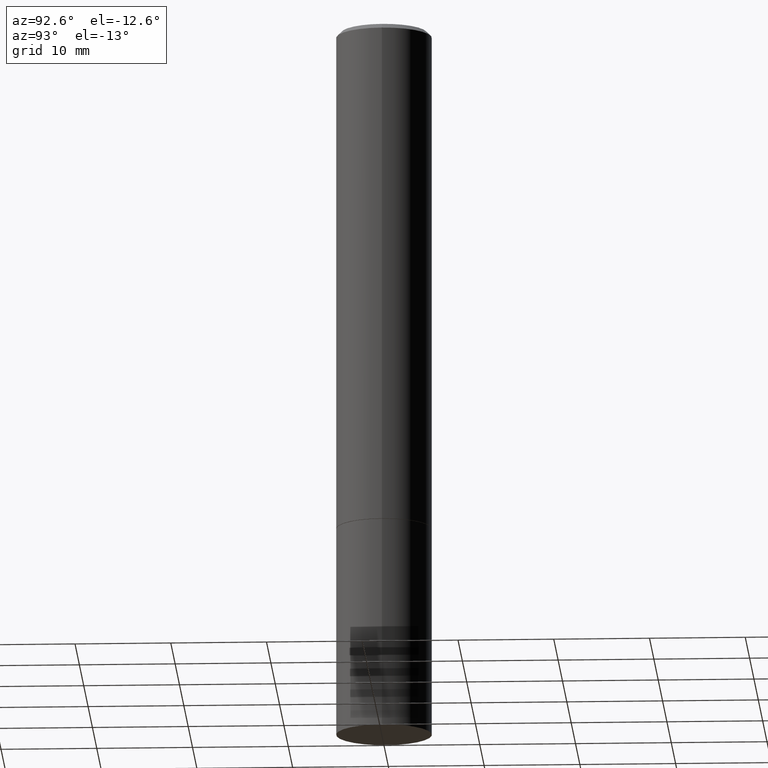
[diagram: clean part render]
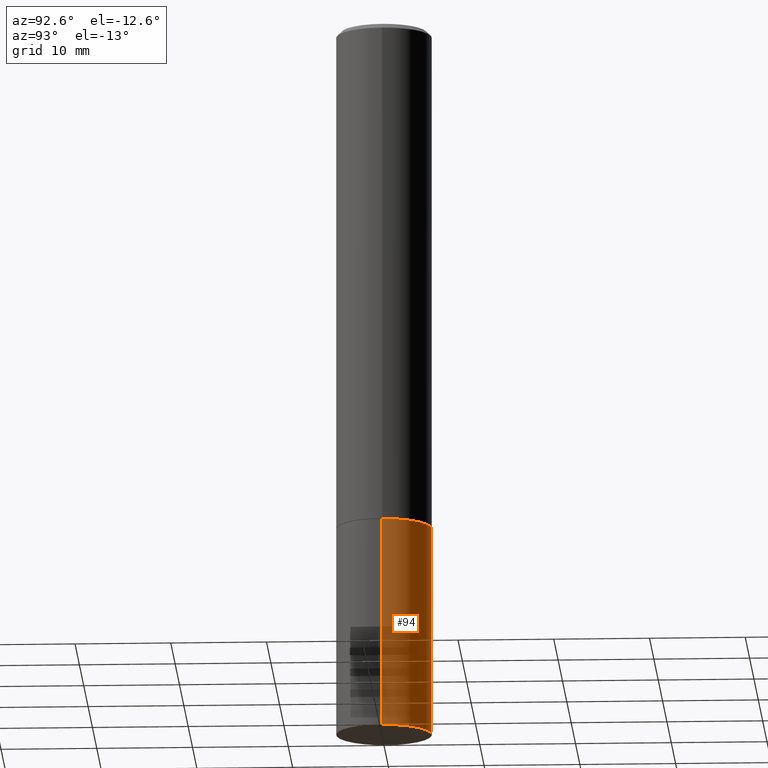
[diagram: same view with one face highlighted and labeled with its STEP entity id]
A machine part, auxiliary view. The second image highlights one B-rep face of the part: STEP entity #94.
In plain terms, the highlighted cylindrical surface (partial cylindrical patch) has radius 5 mm, axis along (-0, 0, 1).
Its self-contained STEP definition (entity closure, byte-faithful):
#15 = CARTESIAN_POINT ( 'NONE',  ( 5.102959757866523939E-29, -7.285674109763990928E-15, -2.086699999999999999 ) ) ;
#35 = VECTOR ( 'NONE', #89, 39.37007874015748143 ) ;
#58 = VECTOR ( 'NONE', #160, 39.37007874015748143 ) ;
#71 = EDGE_CURVE ( 'NONE', #95, #91, #301, .T. ) ;
#85 = LINE ( 'NONE', #203, #35 ) ;
#87 = CARTESIAN_POINT ( 'NONE',  ( 0.1968500000000000250, -1.168424230043858014E-14, -2.952799999999999869 ) ) ;
#89 = DIRECTION ( 'NONE',  ( -2.445468806185136877E-29, 3.491481338843145188E-15, 1.000000000000000000 ) ) ;
#91 = VERTEX_POINT ( 'NONE', #302 ) ;
#94 = ADVANCED_FACE ( 'NONE', ( #105 ), #361, .T. ) ;
#95 = VERTEX_POINT ( 'NONE', #231 ) ;
#105 = FACE_OUTER_BOUND ( 'NONE', #143, .T. ) ;
#113 = CIRCLE ( 'NONE', #178, 0.1968500000000000250 ) ;
#127 = VERTEX_POINT ( 'NONE', #87 ) ;
#143 = EDGE_LOOP ( 'NONE', ( #328, #347, #211, #320 ) ) ;
#160 = DIRECTION ( 'NONE',  ( -2.445468806185136877E-29, 3.491481338843145188E-15, 1.000000000000000000 ) ) ;
#173 = DIRECTION ( 'NONE',  ( -2.445468806185136597E-29, 3.491481338843145583E-15, 1.000000000000000000 ) ) ;
#176 = DIRECTION ( 'NONE',  ( 1.000000000000000000, -6.982962677686265922E-15, 4.876176775795935793E-29 ) ) ;
#178 = AXIS2_PLACEMENT_3D ( 'NONE', #366, #342, #336 ) ;
#182 = CARTESIAN_POINT ( 'NONE',  ( 0.1968500000000000250, -1.374596203102541608E-15, 9.598753983154300858E-30 ) ) ;
#187 = AXIS2_PLACEMENT_3D ( 'NONE', #279, #249, #176 ) ;
#203 = CARTESIAN_POINT ( 'NONE',  ( -0.1968500000000000250, 1.398703375343757393E-15, -9.682923725166783677E-30 ) ) ;
#211 = ORIENTED_EDGE ( 'NONE', *, *, #71, .F. ) ;
#219 = EDGE_CURVE ( 'NONE', #127, #263, #113, .T. ) ;
#230 = EDGE_CURVE ( 'NONE', #263, #91, #85, .T. ) ;
#231 = CARTESIAN_POINT ( 'NONE',  ( 0.1968500000000000250, -8.660270312866532536E-15, -2.086699999999999999 ) ) ;
#249 = DIRECTION ( 'NONE',  ( -2.445468806185136597E-29, 3.491481338843145583E-15, 1.000000000000000000 ) ) ;
#263 = VERTEX_POINT ( 'NONE', #314 ) ;
#265 = EDGE_CURVE ( 'NONE', #127, #95, #307, .T. ) ;
#279 = CARTESIAN_POINT ( 'NONE',  ( 0.000000000000000000, 0.000000000000000000, 0.000000000000000000 ) ) ;
#301 = CIRCLE ( 'NONE', #339, 0.1968500000000000250 ) ;
#302 = CARTESIAN_POINT ( 'NONE',  ( -0.1968500000000000250, -7.398956728206258518E-15, -2.086699999999999999 ) ) ;
#307 = LINE ( 'NONE', #182, #58 ) ;
#314 = CARTESIAN_POINT ( 'NONE',  ( -0.1968500000000000250, -7.398956728206258518E-15, -2.952799999999999869 ) ) ;
#320 = ORIENTED_EDGE ( 'NONE', *, *, #265, .F. ) ;
#328 = ORIENTED_EDGE ( 'NONE', *, *, #219, .T. ) ;
#336 = DIRECTION ( 'NONE',  ( 1.000000000000000000, -6.982962677686267499E-15, 0.000000000000000000 ) ) ;
#339 = AXIS2_PLACEMENT_3D ( 'NONE', #15, #173, #356 ) ;
#342 = DIRECTION ( 'NONE',  ( -2.445468806185136597E-29, 3.491481338843145583E-15, 1.000000000000000000 ) ) ;
#347 = ORIENTED_EDGE ( 'NONE', *, *, #230, .T. ) ;
#356 = DIRECTION ( 'NONE',  ( 1.000000000000000000, -6.982962677686267499E-15, 0.000000000000000000 ) ) ;
#361 = CYLINDRICAL_SURFACE ( 'NONE', #187, 0.1968500000000000250 ) ;
#366 = CARTESIAN_POINT ( 'NONE',  ( 7.220980290903470182E-29, -1.030964609733603853E-14, -2.952799999999999869 ) ) ;